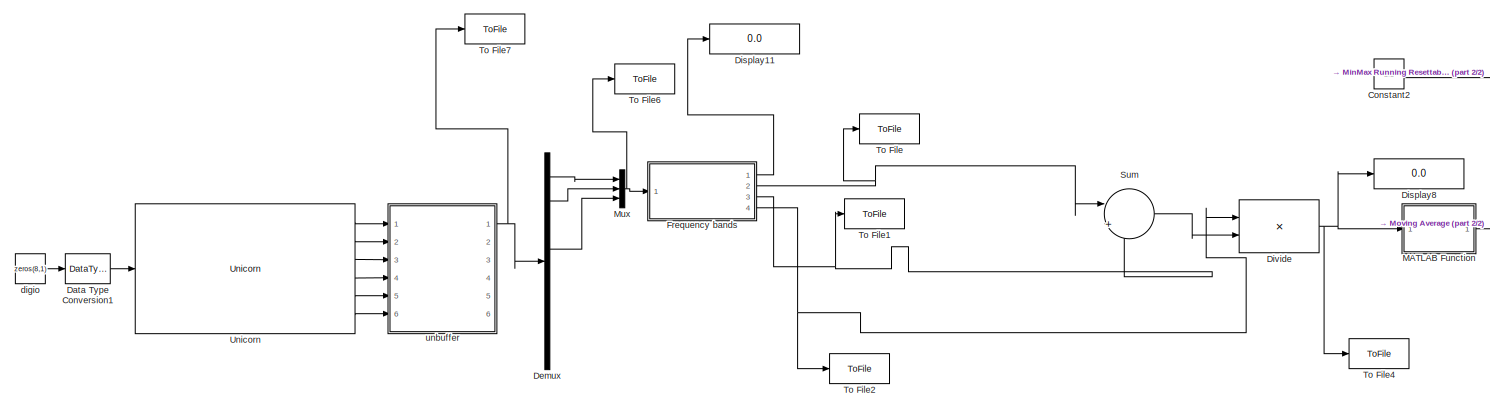
[diagram: root canvas - part 1/2, left side, full height]
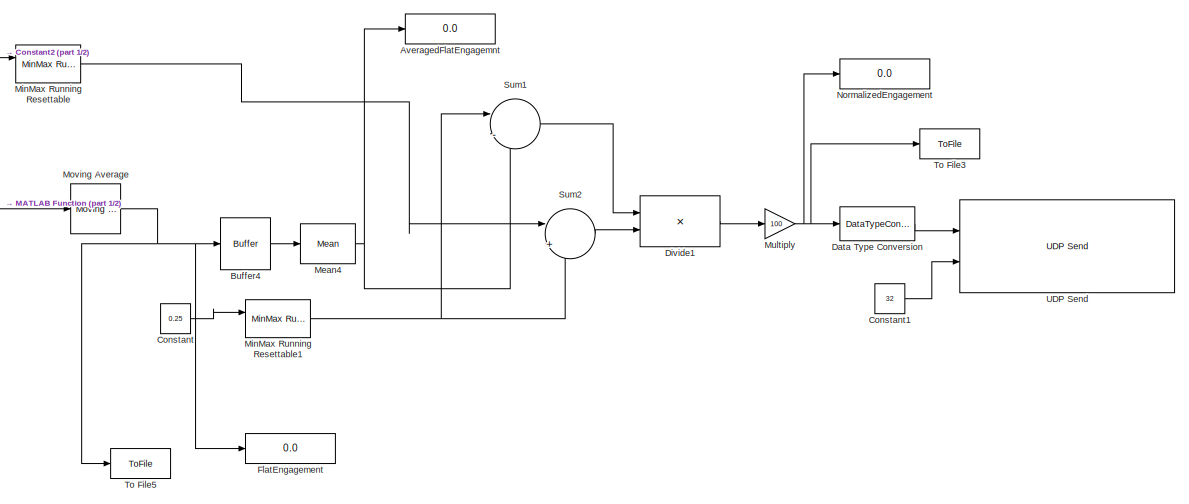
[diagram: root canvas - part 2/2, right side, full height]
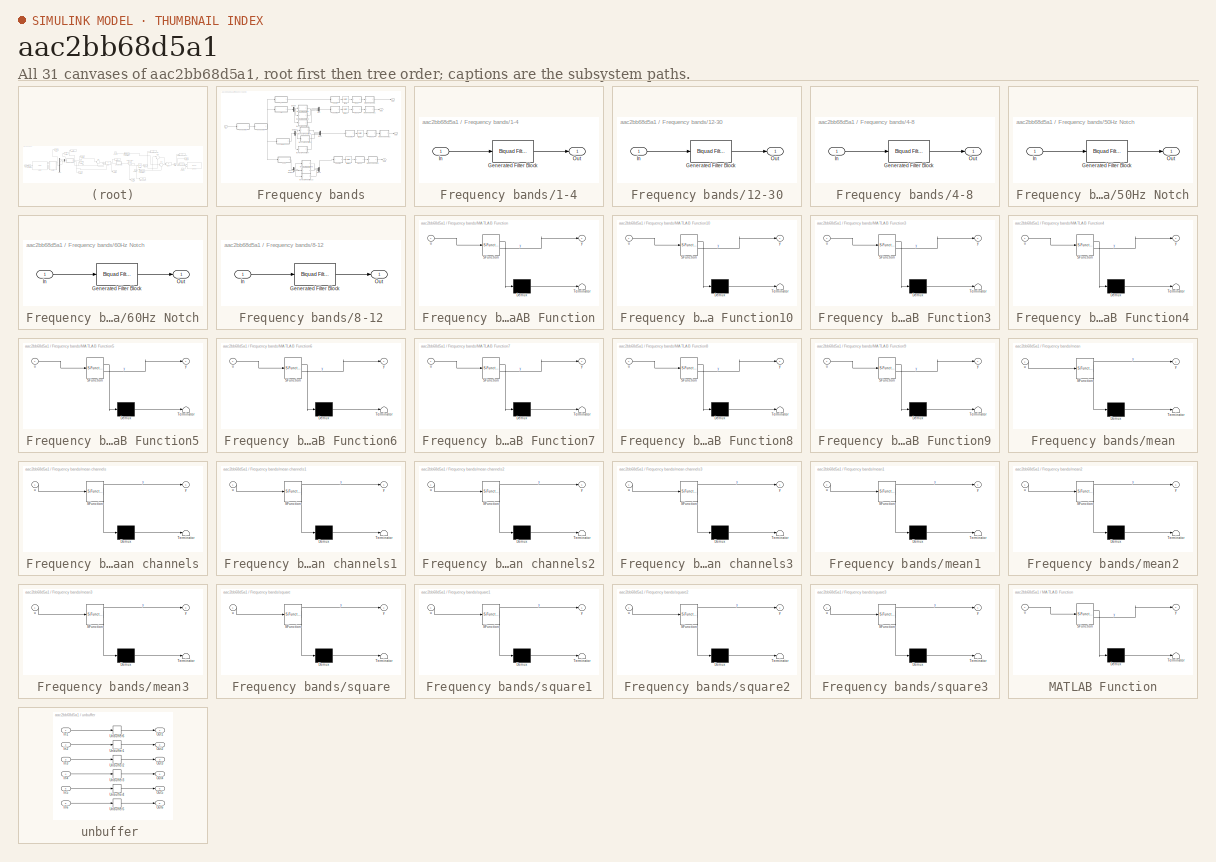
[diagram: thumbnail index - all 31 canvases of the model, root first then tree order]
MODEL slx_aac2bb68d5a1
KIND model
CONFIG AbsTol = auto
CONFIG EnableMultiTasking = off
CONFIG FixedStep = auto
CONFIG MaxStep = auto
CONFIG MinStep = auto
CONFIG RelTol = 1e-3
CONFIG SampleTimeConstraint = Unconstrained
CONFIG SolverName = VariableStepAuto
CONFIG StartTime = 0.0
CONFIG StopTime = inf
BLOCK [Display] AveragedFlatEngagemnt
  Decimation = 1
  Ports = [1]
BLOCK [Buffer] Buffer4
  N = 128
  OutputFrames = off
BLOCK [Constant] Constant
  Value = 0.25
BLOCK [Constant] Constant1
  Value = 32
BLOCK [Constant] Constant2
  Value = 2.1
BLOCK [DataTypeConversion] Data Type Conversion
  RndMeth = Floor
  SaturateOnIntegerOverflow = off
BLOCK [DataTypeConversion] Data Type Conversion1
  OutDataTypeStr = boolean
  RndMeth = Floor
  SaturateOnIntegerOverflow = off
BLOCK [Demux] Demux
  Outputs = 8
  Ports = [1, 8]
BLOCK [Display] Display11
  Decimation = 1
  Ports = [1]
BLOCK [Display] Display8
  Decimation = 1
  Ports = [1]
BLOCK [Product] Divide
  Inputs = */
  Ports = [2, 1]
BLOCK [Product] Divide1
  Inputs = */
  Ports = [2, 1]
BLOCK [Display] FlatEngagement
  Decimation = 1
  Ports = [1]
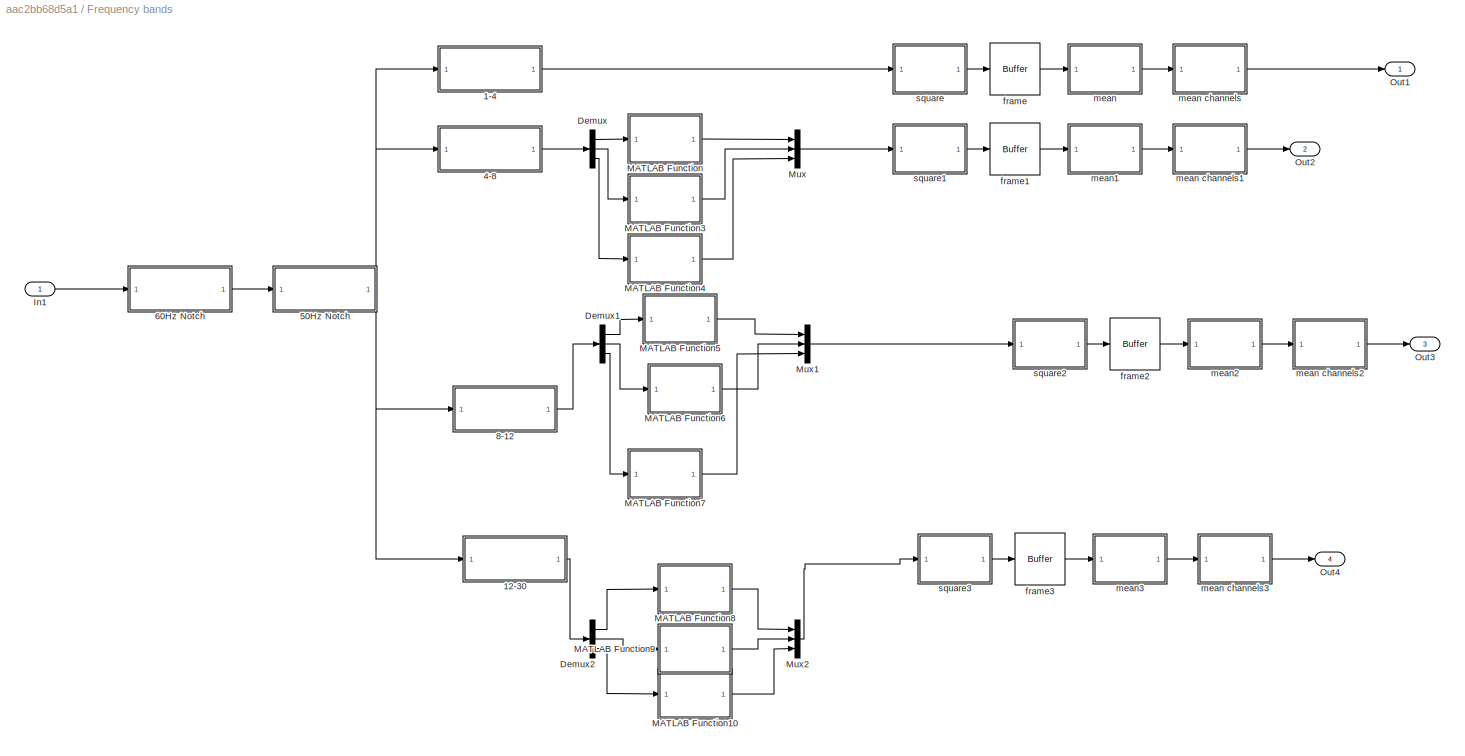
BLOCK [SubSystem] Frequency bands
  Ports = [1, 4]
  RequestExecContextInheritance = off
BLOCK [SubSystem] Frequency bands/1-4
  CopyFcn = fdesignblkfcn(gcbh, {'CopyFcn'});
  DialogController = fdesignblkfcn
  InitFcn = fdesignblkfcn(gcbh, {'InitFcn'});
  Ports = [1, 1]
  RequestExecContextInheritance = off
  UserDataPersistent = on
BLOCK [Reference] Frequency bands/1-4/Generated Filter Block  REF=dsparch4/Biquad Filter
  Ports = [1, 1]
  SourceBlock = dsparch4/Biquad Filter
  SourceProductBaseCode = DS
  SourceType = Biquad Filter
  Tag = BlockMethodSubSystem
  UserDataPersistent = on
BLOCK [Inport] Frequency bands/1-4/In
BLOCK [Outport] Frequency bands/1-4/Out
BLOCK [SubSystem] Frequency bands/12-30
  CopyFcn = fdesignblkfcn(gcbh, {'CopyFcn'});
  DialogController = fdesignblkfcn
  InitFcn = fdesignblkfcn(gcbh, {'InitFcn'});
  Ports = [1, 1]
  RequestExecContextInheritance = off
  UserDataPersistent = on
BLOCK [Reference] Frequency bands/12-30/Generated Filter Block  REF=dsparch4/Biquad Filter
  Ports = [1, 1]
  SourceBlock = dsparch4/Biquad Filter
  SourceProductBaseCode = DS
  SourceType = Biquad Filter
  Tag = BlockMethodSubSystem
  UserDataPersistent = on
BLOCK [Inport] Frequency bands/12-30/In
BLOCK [Outport] Frequency bands/12-30/Out
BLOCK [SubSystem] Frequency bands/4-8
  CopyFcn = fdesignblkfcn(gcbh, {'CopyFcn'});
  DialogController = fdesignblkfcn
  InitFcn = fdesignblkfcn(gcbh, {'InitFcn'});
  Ports = [1, 1]
  RequestExecContextInheritance = off
  UserDataPersistent = on
BLOCK [Reference] Frequency bands/4-8/Generated Filter Block  REF=dsparch4/Biquad Filter
  Ports = [1, 1]
  SourceBlock = dsparch4/Biquad Filter
  SourceProductBaseCode = DS
  SourceType = Biquad Filter
  Tag = BlockMethodSubSystem
  UserDataPersistent = on
BLOCK [Inport] Frequency bands/4-8/In
BLOCK [Outport] Frequency bands/4-8/Out
BLOCK [SubSystem] Frequency bands/50Hz Notch
  CopyFcn = fdesignblkfcn(gcbh, {'CopyFcn'});
  DialogController = fdesignblkfcn
  InitFcn = fdesignblkfcn(gcbh, {'InitFcn'});
  Ports = [1, 1]
  RequestExecContextInheritance = off
  UserDataPersistent = on
BLOCK [Reference] Frequency bands/50Hz Notch/Generated Filter Block  REF=dsparch4/Biquad Filter
  Ports = [1, 1]
  SourceBlock = dsparch4/Biquad Filter
  SourceProductBaseCode = DS
  SourceType = Biquad Filter
  Tag = BlockMethodSubSystem
  UserDataPersistent = on
BLOCK [Inport] Frequency bands/50Hz Notch/In
BLOCK [Outport] Frequency bands/50Hz Notch/Out
BLOCK [SubSystem] Frequency bands/60Hz Notch
  CopyFcn = fdesignblkfcn(gcbh, {'CopyFcn'});
  DialogController = fdesignblkfcn
  InitFcn = fdesignblkfcn(gcbh, {'InitFcn'});
  Ports = [1, 1]
  RequestExecContextInheritance = off
  UserDataPersistent = on
BLOCK [Reference] Frequency bands/60Hz Notch/Generated Filter Block  REF=dsparch4/Biquad Filter
  Ports = [1, 1]
  SourceBlock = dsparch4/Biquad Filter
  SourceProductBaseCode = DS
  SourceType = Biquad Filter
  Tag = BlockMethodSubSystem
  UserDataPersistent = on
BLOCK [Inport] Frequency bands/60Hz Notch/In
BLOCK [Outport] Frequency bands/60Hz Notch/Out
BLOCK [SubSystem] Frequency bands/8-12
  CopyFcn = fdesignblkfcn(gcbh, {'CopyFcn'});
  DialogController = fdesignblkfcn
  InitFcn = fdesignblkfcn(gcbh, {'InitFcn'});
  Ports = [1, 1]
  RequestExecContextInheritance = off
  UserDataPersistent = on
BLOCK [Reference] Frequency bands/8-12/Generated Filter Block  REF=dsparch4/Biquad Filter
  Ports = [1, 1]
  SourceBlock = dsparch4/Biquad Filter
  SourceProductBaseCode = DS
  SourceType = Biquad Filter
  Tag = BlockMethodSubSystem
  UserDataPersistent = on
BLOCK [Inport] Frequency bands/8-12/In
BLOCK [Outport] Frequency bands/8-12/Out
BLOCK [Demux] Frequency bands/Demux
  Outputs = 3
  Ports = [1, 3]
BLOCK [Demux] Frequency bands/Demux1
  Outputs = 3
  Ports = [1, 3]
BLOCK [Demux] Frequency bands/Demux2
  Outputs = 3
  Ports = [1, 3]
BLOCK [Inport] Frequency bands/In1
BLOCK [SubSystem] Frequency bands/MATLAB Function
  ErrorFcn = Stateflow.Translate.translate
  PermitHierarchicalResolution = ExplicitOnly
  Ports = [1, 1]
  RequestExecContextInheritance = off
  SFBlockType = MATLAB Function
  TreatAsAtomicUnit = on
BLOCK [Demux] Frequency bands/MATLAB Function/ Demux 
  Outputs = 1
  Ports = [1, 1]
BLOCK [S-Function] Frequency bands/MATLAB Function/ SFunction 
  EnableBusSupport = on
  FunctionName = sf_sfun
  PortCounts = [1 2]
  Ports = [1, 2]
  SFcnIsStateOwnerBlock = off
  SFunctionDeploymentMode = off
  Tag = Stateflow S-Function 14
BLOCK [Terminator] Frequency bands/MATLAB Function/ Terminator 
BLOCK [Inport] Frequency bands/MATLAB Function/u
BLOCK [Outport] Frequency bands/MATLAB Function/y
BLOCK [SubSystem] Frequency bands/MATLAB Function10
  ErrorFcn = Stateflow.Translate.translate
  PermitHierarchicalResolution = ExplicitOnly
  Ports = [1, 1]
  RequestExecContextInheritance = off
  SFBlockType = MATLAB Function
  TreatAsAtomicUnit = on
BLOCK [Demux] Frequency bands/MATLAB Function10/ Demux 
  Outputs = 1
  Ports = [1, 1]
BLOCK [S-Function] Frequency bands/MATLAB Function10/ SFunction 
  EnableBusSupport = on
  FunctionName = sf_sfun
  PortCounts = [1 2]
  Ports = [1, 2]
  SFcnIsStateOwnerBlock = off
  SFunctionDeploymentMode = off
  Tag = Stateflow S-Function 24
BLOCK [Terminator] Frequency bands/MATLAB Function10/ Terminator 
BLOCK [Inport] Frequency bands/MATLAB Function10/u
BLOCK [Outport] Frequency bands/MATLAB Function10/y
BLOCK [SubSystem] Frequency bands/MATLAB Function3
  ErrorFcn = Stateflow.Translate.translate
  PermitHierarchicalResolution = ExplicitOnly
  Ports = [1, 1]
  RequestExecContextInheritance = off
  SFBlockType = MATLAB Function
  TreatAsAtomicUnit = on
BLOCK [Demux] Frequency bands/MATLAB Function3/ Demux 
  Outputs = 1
  Ports = [1, 1]
BLOCK [S-Function] Frequency bands/MATLAB Function3/ SFunction 
  EnableBusSupport = on
  FunctionName = sf_sfun
  PortCounts = [1 2]
  Ports = [1, 2]
  SFcnIsStateOwnerBlock = off
  SFunctionDeploymentMode = off
  Tag = Stateflow S-Function 17
BLOCK [Terminator] Frequency bands/MATLAB Function3/ Terminator 
BLOCK [Inport] Frequency bands/MATLAB Function3/u
BLOCK [Outport] Frequency bands/MATLAB Function3/y
BLOCK [SubSystem] Frequency bands/MATLAB Function4
  ErrorFcn = Stateflow.Translate.translate
  PermitHierarchicalResolution = ExplicitOnly
  Ports = [1, 1]
  RequestExecContextInheritance = off
  SFBlockType = MATLAB Function
  TreatAsAtomicUnit = on
BLOCK [Demux] Frequency bands/MATLAB Function4/ Demux 
  Outputs = 1
  Ports = [1, 1]
BLOCK [S-Function] Frequency bands/MATLAB Function4/ SFunction 
  EnableBusSupport = on
  FunctionName = sf_sfun
  PortCounts = [1 2]
  Ports = [1, 2]
  SFcnIsStateOwnerBlock = off
  SFunctionDeploymentMode = off
  Tag = Stateflow S-Function 18
BLOCK [Terminator] Frequency bands/MATLAB Function4/ Terminator 
BLOCK [Inport] Frequency bands/MATLAB Function4/u
BLOCK [Outport] Frequency bands/MATLAB Function4/y
BLOCK [SubSystem] Frequency bands/MATLAB Function5
  ErrorFcn = Stateflow.Translate.translate
  PermitHierarchicalResolution = ExplicitOnly
  Ports = [1, 1]
  RequestExecContextInheritance = off
  SFBlockType = MATLAB Function
  TreatAsAtomicUnit = on
BLOCK [Demux] Frequency bands/MATLAB Function5/ Demux 
  Outputs = 1
  Ports = [1, 1]
BLOCK [S-Function] Frequency bands/MATLAB Function5/ SFunction 
  EnableBusSupport = on
  FunctionName = sf_sfun
  PortCounts = [1 2]
  Ports = [1, 2]
  SFcnIsStateOwnerBlock = off
  SFunctionDeploymentMode = off
  Tag = Stateflow S-Function 19
BLOCK [Terminator] Frequency bands/MATLAB Function5/ Terminator 
BLOCK [Inport] Frequency bands/MATLAB Function5/u
BLOCK [Outport] Frequency bands/MATLAB Function5/y
BLOCK [SubSystem] Frequency bands/MATLAB Function6
  ErrorFcn = Stateflow.Translate.translate
  PermitHierarchicalResolution = ExplicitOnly
  Ports = [1, 1]
  RequestExecContextInheritance = off
  SFBlockType = MATLAB Function
  TreatAsAtomicUnit = on
BLOCK [Demux] Frequency bands/MATLAB Function6/ Demux 
  Outputs = 1
  Ports = [1, 1]
BLOCK [S-Function] Frequency bands/MATLAB Function6/ SFunction 
  EnableBusSupport = on
  FunctionName = sf_sfun
  PortCounts = [1 2]
  Ports = [1, 2]
  SFcnIsStateOwnerBlock = off
  SFunctionDeploymentMode = off
  Tag = Stateflow S-Function 20
BLOCK [Terminator] Frequency bands/MATLAB Function6/ Terminator 
BLOCK [Inport] Frequency bands/MATLAB Function6/u
BLOCK [Outport] Frequency bands/MATLAB Function6/y
BLOCK [SubSystem] Frequency bands/MATLAB Function7
  ErrorFcn = Stateflow.Translate.translate
  PermitHierarchicalResolution = ExplicitOnly
  Ports = [1, 1]
  RequestExecContextInheritance = off
  SFBlockType = MATLAB Function
  TreatAsAtomicUnit = on
BLOCK [Demux] Frequency bands/MATLAB Function7/ Demux 
  Outputs = 1
  Ports = [1, 1]
BLOCK [S-Function] Frequency bands/MATLAB Function7/ SFunction 
  EnableBusSupport = on
  FunctionName = sf_sfun
  PortCounts = [1 2]
  Ports = [1, 2]
  SFcnIsStateOwnerBlock = off
  SFunctionDeploymentMode = off
  Tag = Stateflow S-Function 21
BLOCK [Terminator] Frequency bands/MATLAB Function7/ Terminator 
BLOCK [Inport] Frequency bands/MATLAB Function7/u
BLOCK [Outport] Frequency bands/MATLAB Function7/y
BLOCK [SubSystem] Frequency bands/MATLAB Function8
  ErrorFcn = Stateflow.Translate.translate
  PermitHierarchicalResolution = ExplicitOnly
  Ports = [1, 1]
  RequestExecContextInheritance = off
  SFBlockType = MATLAB Function
  TreatAsAtomicUnit = on
BLOCK [Demux] Frequency bands/MATLAB Function8/ Demux 
  Outputs = 1
  Ports = [1, 1]
BLOCK [S-Function] Frequency bands/MATLAB Function8/ SFunction 
  EnableBusSupport = on
  FunctionName = sf_sfun
  PortCounts = [1 2]
  Ports = [1, 2]
  SFcnIsStateOwnerBlock = off
  SFunctionDeploymentMode = off
  Tag = Stateflow S-Function 22
BLOCK [Terminator] Frequency bands/MATLAB Function8/ Terminator 
BLOCK [Inport] Frequency bands/MATLAB Function8/u
BLOCK [Outport] Frequency bands/MATLAB Function8/y
BLOCK [SubSystem] Frequency bands/MATLAB Function9
  ErrorFcn = Stateflow.Translate.translate
  PermitHierarchicalResolution = ExplicitOnly
  Ports = [1, 1]
  RequestExecContextInheritance = off
  SFBlockType = MATLAB Function
  TreatAsAtomicUnit = on
BLOCK [Demux] Frequency bands/MATLAB Function9/ Demux 
  Outputs = 1
  Ports = [1, 1]
BLOCK [S-Function] Frequency bands/MATLAB Function9/ SFunction 
  EnableBusSupport = on
  FunctionName = sf_sfun
  PortCounts = [1 2]
  Ports = [1, 2]
  SFcnIsStateOwnerBlock = off
  SFunctionDeploymentMode = off
  Tag = Stateflow S-Function 23
BLOCK [Terminator] Frequency bands/MATLAB Function9/ Terminator 
BLOCK [Inport] Frequency bands/MATLAB Function9/u
BLOCK [Outport] Frequency bands/MATLAB Function9/y
BLOCK [Mux] Frequency bands/Mux
  DisplayOption = bar
  Inputs = 3
  Ports = [3, 1]
BLOCK [Mux] Frequency bands/Mux1
  DisplayOption = bar
  Inputs = 3
  Ports = [3, 1]
BLOCK [Mux] Frequency bands/Mux2
  DisplayOption = bar
  Inputs = 3
  Ports = [3, 1]
BLOCK [Outport] Frequency bands/Out1
BLOCK [Outport] Frequency bands/Out2
  Port = 2
BLOCK [Outport] Frequency bands/Out3
  Port = 3
BLOCK [Outport] Frequency bands/Out4
  Port = 4
BLOCK [Buffer] Frequency bands/frame
  N = windowLength
  V = windowOverlap
BLOCK [Buffer] Frequency bands/frame1
  N = windowLength
  V = windowOverlap
BLOCK [Buffer] Frequency bands/frame2
  N = windowLength
  V = windowOverlap
BLOCK [Buffer] Frequency bands/frame3
  N = windowLength
  V = windowOverlap
BLOCK [SubSystem] Frequency bands/mean
  ErrorFcn = Stateflow.Translate.translate
  PermitHierarchicalResolution = ExplicitOnly
  Ports = [1, 1]
  RequestExecContextInheritance = off
  SFBlockType = MATLAB Function
  TreatAsAtomicUnit = on
BLOCK [SubSystem] Frequency bands/mean channels
  ErrorFcn = Stateflow.Translate.translate
  PermitHierarchicalResolution = ExplicitOnly
  Ports = [1, 1]
  RequestExecContextInheritance = off
  SFBlockType = MATLAB Function
  TreatAsAtomicUnit = on
BLOCK [Demux] Frequency bands/mean channels/ Demux 
  Outputs = 1
  Ports = [1, 1]
BLOCK [S-Function] Frequency bands/mean channels/ SFunction 
  EnableBusSupport = on
  FunctionName = sf_sfun
  PortCounts = [1 2]
  Ports = [1, 2]
  SFcnIsStateOwnerBlock = off
  SFunctionDeploymentMode = off
  Tag = Stateflow S-Function 3
BLOCK [Terminator] Frequency bands/mean channels/ Terminator 
BLOCK [Inport] Frequency bands/mean channels/u
BLOCK [Outport] Frequency bands/mean channels/y
BLOCK [SubSystem] Frequency bands/mean channels1
  ErrorFcn = Stateflow.Translate.translate
  PermitHierarchicalResolution = ExplicitOnly
  Ports = [1, 1]
  RequestExecContextInheritance = off
  SFBlockType = MATLAB Function
  TreatAsAtomicUnit = on
BLOCK [Demux] Frequency bands/mean channels1/ Demux 
  Outputs = 1
  Ports = [1, 1]
BLOCK [S-Function] Frequency bands/mean channels1/ SFunction 
  EnableBusSupport = on
  FunctionName = sf_sfun
  PortCounts = [1 2]
  Ports = [1, 2]
  SFcnIsStateOwnerBlock = off
  SFunctionDeploymentMode = off
  Tag = Stateflow S-Function 4
BLOCK [Terminator] Frequency bands/mean channels1/ Terminator 
BLOCK [Inport] Frequency bands/mean channels1/u
BLOCK [Outport] Frequency bands/mean channels1/y
BLOCK [SubSystem] Frequency bands/mean channels2
  ErrorFcn = Stateflow.Translate.translate
  PermitHierarchicalResolution = ExplicitOnly
  Ports = [1, 1]
  RequestExecContextInheritance = off
  SFBlockType = MATLAB Function
  TreatAsAtomicUnit = on
BLOCK [Demux] Frequency bands/mean channels2/ Demux 
  Outputs = 1
  Ports = [1, 1]
BLOCK [S-Function] Frequency bands/mean channels2/ SFunction 
  EnableBusSupport = on
  FunctionName = sf_sfun
  PortCounts = [1 2]
  Ports = [1, 2]
  SFcnIsStateOwnerBlock = off
  SFunctionDeploymentMode = off
  Tag = Stateflow S-Function 7
BLOCK [Terminator] Frequency bands/mean channels2/ Terminator 
BLOCK [Inport] Frequency bands/mean channels2/u
BLOCK [Outport] Frequency bands/mean channels2/y
BLOCK [SubSystem] Frequency bands/mean channels3
  ErrorFcn = Stateflow.Translate.translate
  PermitHierarchicalResolution = ExplicitOnly
  Ports = [1, 1]
  RequestExecContextInheritance = off
  SFBlockType = MATLAB Function
  TreatAsAtomicUnit = on
BLOCK [Demux] Frequency bands/mean channels3/ Demux 
  Outputs = 1
  Ports = [1, 1]
BLOCK [S-Function] Frequency bands/mean channels3/ SFunction 
  EnableBusSupport = on
  FunctionName = sf_sfun
  PortCounts = [1 2]
  Ports = [1, 2]
  SFcnIsStateOwnerBlock = off
  SFunctionDeploymentMode = off
  Tag = Stateflow S-Function 10
BLOCK [Terminator] Frequency bands/mean channels3/ Terminator 
BLOCK [Inport] Frequency bands/mean channels3/u
BLOCK [Outport] Frequency bands/mean channels3/y
BLOCK [Demux] Frequency bands/mean/ Demux 
  Outputs = 1
  Ports = [1, 1]
BLOCK [S-Function] Frequency bands/mean/ SFunction 
  EnableBusSupport = on
  FunctionName = sf_sfun
  PortCounts = [1 2]
  Ports = [1, 2]
  SFcnIsStateOwnerBlock = off
  SFunctionDeploymentMode = off
  Tag = Stateflow S-Function 1
BLOCK [Terminator] Frequency bands/mean/ Terminator 
BLOCK [Inport] Frequency bands/mean/u
BLOCK [Outport] Frequency bands/mean/y
BLOCK [SubSystem] Frequency bands/mean1
  ErrorFcn = Stateflow.Translate.translate
  PermitHierarchicalResolution = ExplicitOnly
  Ports = [1, 1]
  RequestExecContextInheritance = off
  SFBlockType = MATLAB Function
  TreatAsAtomicUnit = on
BLOCK [Demux] Frequency bands/mean1/ Demux 
  Outputs = 1
  Ports = [1, 1]
BLOCK [S-Function] Frequency bands/mean1/ SFunction 
  EnableBusSupport = on
  FunctionName = sf_sfun
  PortCounts = [1 2]
  Ports = [1, 2]
  SFcnIsStateOwnerBlock = off
  SFunctionDeploymentMode = off
  Tag = Stateflow S-Function 5
BLOCK [Terminator] Frequency bands/mean1/ Terminator 
BLOCK [Inport] Frequency bands/mean1/u
BLOCK [Outport] Frequency bands/mean1/y
BLOCK [SubSystem] Frequency bands/mean2
  ErrorFcn = Stateflow.Translate.translate
  PermitHierarchicalResolution = ExplicitOnly
  Ports = [1, 1]
  RequestExecContextInheritance = off
  SFBlockType = MATLAB Function
  TreatAsAtomicUnit = on
BLOCK [Demux] Frequency bands/mean2/ Demux 
  Outputs = 1
  Ports = [1, 1]
BLOCK [S-Function] Frequency bands/mean2/ SFunction 
  EnableBusSupport = on
  FunctionName = sf_sfun
  PortCounts = [1 2]
  Ports = [1, 2]
  SFcnIsStateOwnerBlock = off
  SFunctionDeploymentMode = off
  Tag = Stateflow S-Function 8
BLOCK [Terminator] Frequency bands/mean2/ Terminator 
BLOCK [Inport] Frequency bands/mean2/u
BLOCK [Outport] Frequency bands/mean2/y
BLOCK [SubSystem] Frequency bands/mean3
  ErrorFcn = Stateflow.Translate.translate
  PermitHierarchicalResolution = ExplicitOnly
  Ports = [1, 1]
  RequestExecContextInheritance = off
  SFBlockType = MATLAB Function
  TreatAsAtomicUnit = on
BLOCK [Demux] Frequency bands/mean3/ Demux 
  Outputs = 1
  Ports = [1, 1]
BLOCK [S-Function] Frequency bands/mean3/ SFunction 
  EnableBusSupport = on
  FunctionName = sf_sfun
  PortCounts = [1 2]
  Ports = [1, 2]
  SFcnIsStateOwnerBlock = off
  SFunctionDeploymentMode = off
  Tag = Stateflow S-Function 11
BLOCK [Terminator] Frequency bands/mean3/ Terminator 
BLOCK [Inport] Frequency bands/mean3/u
BLOCK [Outport] Frequency bands/mean3/y
BLOCK [SubSystem] Frequency bands/square
  ErrorFcn = Stateflow.Translate.translate
  PermitHierarchicalResolution = ExplicitOnly
  Ports = [1, 1]
  RequestExecContextInheritance = off
  SFBlockType = MATLAB Function
  TreatAsAtomicUnit = on
BLOCK [Demux] Frequency bands/square/ Demux 
  Outputs = 1
  Ports = [1, 1]
BLOCK [S-Function] Frequency bands/square/ SFunction 
  EnableBusSupport = on
  FunctionName = sf_sfun
  PortCounts = [1 2]
  Ports = [1, 2]
  SFcnIsStateOwnerBlock = off
  SFunctionDeploymentMode = off
  Tag = Stateflow S-Function 2
BLOCK [Terminator] Frequency bands/square/ Terminator 
BLOCK [Inport] Frequency bands/square/u
BLOCK [Outport] Frequency bands/square/y
BLOCK [SubSystem] Frequency bands/square1
  ErrorFcn = Stateflow.Translate.translate
  PermitHierarchicalResolution = ExplicitOnly
  Ports = [1, 1]
  RequestExecContextInheritance = off
  SFBlockType = MATLAB Function
  TreatAsAtomicUnit = on
BLOCK [Demux] Frequency bands/square1/ Demux 
  Outputs = 1
  Ports = [1, 1]
BLOCK [S-Function] Frequency bands/square1/ SFunction 
  EnableBusSupport = on
  FunctionName = sf_sfun
  PortCounts = [1 2]
  Ports = [1, 2]
  SFcnIsStateOwnerBlock = off
  SFunctionDeploymentMode = off
  Tag = Stateflow S-Function 6
BLOCK [Terminator] Frequency bands/square1/ Terminator 
BLOCK [Inport] Frequency bands/square1/u
BLOCK [Outport] Frequency bands/square1/y
BLOCK [SubSystem] Frequency bands/square2
  ErrorFcn = Stateflow.Translate.translate
  PermitHierarchicalResolution = ExplicitOnly
  Ports = [1, 1]
  RequestExecContextInheritance = off
  SFBlockType = MATLAB Function
  TreatAsAtomicUnit = on
BLOCK [Demux] Frequency bands/square2/ Demux 
  Outputs = 1
  Ports = [1, 1]
BLOCK [S-Function] Frequency bands/square2/ SFunction 
  EnableBusSupport = on
  FunctionName = sf_sfun
  PortCounts = [1 2]
  Ports = [1, 2]
  SFcnIsStateOwnerBlock = off
  SFunctionDeploymentMode = off
  Tag = Stateflow S-Function 9
BLOCK [Terminator] Frequency bands/square2/ Terminator 
BLOCK [Inport] Frequency bands/square2/u
BLOCK [Outport] Frequency bands/square2/y
BLOCK [SubSystem] Frequency bands/square3
  ErrorFcn = Stateflow.Translate.translate
  PermitHierarchicalResolution = ExplicitOnly
  Ports = [1, 1]
  RequestExecContextInheritance = off
  SFBlockType = MATLAB Function
  TreatAsAtomicUnit = on
BLOCK [Demux] Frequency bands/square3/ Demux 
  Outputs = 1
  Ports = [1, 1]
BLOCK [S-Function] Frequency bands/square3/ SFunction 
  EnableBusSupport = on
  FunctionName = sf_sfun
  PortCounts = [1 2]
  Ports = [1, 2]
  SFcnIsStateOwnerBlock = off
  SFunctionDeploymentMode = off
  Tag = Stateflow S-Function 12
BLOCK [Terminator] Frequency bands/square3/ Terminator 
BLOCK [Inport] Frequency bands/square3/u
BLOCK [Outport] Frequency bands/square3/y
BLOCK [SubSystem] MATLAB Function
  ErrorFcn = Stateflow.Translate.translate
  PermitHierarchicalResolution = ExplicitOnly
  Ports = [1, 1]
  RequestExecContextInheritance = off
  SFBlockType = MATLAB Function
  TreatAsAtomicUnit = on
BLOCK [Demux] MATLAB Function/ Demux 
  Outputs = 1
  Ports = [1, 1]
BLOCK [S-Function] MATLAB Function/ SFunction 
  EnableBusSupport = on
  FunctionName = sf_sfun
  PortCounts = [1 2]
  Ports = [1, 2]
  SFcnIsStateOwnerBlock = off
  SFunctionDeploymentMode = off
  Tag = Stateflow S-Function 13
BLOCK [Terminator] MATLAB Function/ Terminator 
BLOCK [Inport] MATLAB Function/u
BLOCK [Outport] MATLAB Function/y
BLOCK [Reference] Mean4  REF=dspstat3/Mean
  Ports = [1, 1]
  SourceBlock = dspstat3/Mean
  SourceProductBaseCode = DS
  SourceType = Mean
  UserDataPersistent = on
BLOCK [Reference] MinMax Running Resettable  REF=simulink/Math
Operations/MinMax
Running
Resettable
  Ports = [2, 1]
  SourceBlock = simulink/Math\nOperations/MinMax\nRunning\nResettable
  SourceProductBaseCode = SL
  SourceType = MinMax Running Resettable
BLOCK [Reference] MinMax Running Resettable1  REF=simulink/Math
Operations/MinMax
Running
Resettable
  Ports = [2, 1]
  SourceBlock = simulink/Math\nOperations/MinMax\nRunning\nResettable
  SourceProductBaseCode = SL
  SourceType = MinMax Running Resettable
BLOCK [Reference] Moving Average  REF=dspstat3/Moving
Average
  Ports = [1, 1]
  SourceBlock = dspstat3/Moving\nAverage
  SourceProductBaseCode = DS
  SourceType = dsp.simulink.MovingAverage
BLOCK [Gain] Multiply
  Gain = 100
BLOCK [Mux] Mux
  DisplayOption = bar
  Inputs = 3
  Ports = [3, 1]
BLOCK [Display] NormalizedEngagement
  Decimation = 1
  Ports = [1]
BLOCK [Sum] Sum
  Inputs = |++
  Ports = [2, 1]
BLOCK [Sum] Sum1
  Inputs = |-+
  Ports = [2, 1]
BLOCK [Sum] Sum2
  Inputs = |+-
  Ports = [2, 1]
BLOCK [ToFile] To File
  Filename = theta.mat
  Ports = [1]
  SaveFormat = Timeseries
BLOCK [ToFile] To File1
  Filename = alpha.mat
  Ports = [1]
  SaveFormat = Timeseries
BLOCK [ToFile] To File2
  Filename = beta.mat
  Ports = [1]
  SaveFormat = Timeseries
BLOCK [ToFile] To File3
  Filename = normalizedengagement.mat
  Ports = [1]
  SaveFormat = Timeseries
BLOCK [ToFile] To File4
  Filename = enorm.mat
  Ports = [1]
  SaveFormat = Timeseries
BLOCK [ToFile] To File5
  Filename = flatengagement.mat
  Ports = [1]
  SaveFormat = Timeseries
BLOCK [ToFile] To File6
  Filename = frontalelectrodes.mat
  Ports = [1]
  SaveFormat = Timeseries
BLOCK [ToFile] To File7
  Filename = raweeg.mat
  Ports = [1]
  SaveFormat = Timeseries
BLOCK [Reference] UDP Send  REF=slrealtimeiplib/UDP Send
  Ports = [2]
  SourceBlock = slrealtimeiplib/UDP Send
  SourceProductBaseCode = XP
  SourceType = slrealtimeudpsend
BLOCK [Reference] Unicorn  REF=UnicornLib/Unicorn
  Ports = [1, 6]
  SourceBlock = UnicornLib/Unicorn
  SourceProductName = Unicorn
  SourceType = Unicorn
BLOCK [Constant] digio
  SampleTime = -1
  Value = zeros(8,1)
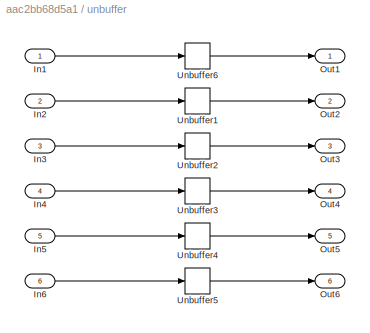
BLOCK [SubSystem] unbuffer 
  Ports = [6, 6]
  RequestExecContextInheritance = off
BLOCK [Inport] unbuffer /In1
BLOCK [Inport] unbuffer /In2
  Port = 2
BLOCK [Inport] unbuffer /In3
  Port = 3
BLOCK [Inport] unbuffer /In4
  Port = 4
BLOCK [Inport] unbuffer /In5
  Port = 5
BLOCK [Inport] unbuffer /In6
  Port = 6
BLOCK [Outport] unbuffer /Out1
BLOCK [Outport] unbuffer /Out2
  Port = 2
BLOCK [Outport] unbuffer /Out3
  Port = 3
BLOCK [Outport] unbuffer /Out4
  Port = 4
BLOCK [Outport] unbuffer /Out5
  Port = 5
BLOCK [Outport] unbuffer /Out6
  Port = 6
BLOCK [Unbuffer] unbuffer /Unbuffer1
  Ports = [1, 1]
BLOCK [Unbuffer] unbuffer /Unbuffer2
  Ports = [1, 1]
BLOCK [Unbuffer] unbuffer /Unbuffer3
  Ports = [1, 1]
BLOCK [Unbuffer] unbuffer /Unbuffer4
  Ports = [1, 1]
BLOCK [Unbuffer] unbuffer /Unbuffer5
  Ports = [1, 1]
BLOCK [Unbuffer] unbuffer /Unbuffer6
  Ports = [1, 1]
LINE Buffer4:1 -> Mean4:1
LINE Constant1:1 -> UDP Send:2
LINE Constant2:1 -> MinMax Running Resettable:1
LINE Constant:1 -> MinMax Running Resettable1:1
LINE Data Type Conversion1:1 -> Unicorn:1
LINE Data Type Conversion:1 -> UDP Send:1
LINE Demux:1 -> Mux:1
LINE Demux:2 -> Mux:2
LINE Demux:4 -> Mux:3
LINE Divide1:1 -> Multiply:1
NET Divide:1 -> Display8:1, MATLAB Function:1, To File4:1
LINE Frequency bands/1-4:1 -> Frequency bands/square:1
LINE Frequency bands/12-30:1 -> Frequency bands/Demux2:1
LINE Frequency bands/4-8:1 -> Frequency bands/Demux:1
NET Frequency bands/50Hz Notch:1 -> Frequency bands/1-4:1, Frequency bands/12-30:1, Frequency bands/4-8:1, Frequency bands/8-12:1
LINE Frequency bands/60Hz Notch:1 -> Frequency bands/50Hz Notch:1
LINE Frequency bands/8-12:1 -> Frequency bands/Demux1:1
LINE Frequency bands/Demux1:1 -> Frequency bands/MATLAB Function5:1
LINE Frequency bands/Demux1:2 -> Frequency bands/MATLAB Function6:1
LINE Frequency bands/Demux1:3 -> Frequency bands/MATLAB Function7:1
LINE Frequency bands/Demux2:1 -> Frequency bands/MATLAB Function8:1
LINE Frequency bands/Demux2:2 -> Frequency bands/MATLAB Function9:1
LINE Frequency bands/Demux2:3 -> Frequency bands/MATLAB Function10:1
LINE Frequency bands/Demux:1 -> Frequency bands/MATLAB Function:1
LINE Frequency bands/Demux:2 -> Frequency bands/MATLAB Function3:1
LINE Frequency bands/Demux:3 -> Frequency bands/MATLAB Function4:1
LINE Frequency bands/In1:1 -> Frequency bands/60Hz Notch:1
LINE Frequency bands/MATLAB Function10:1 -> Frequency bands/Mux2:3
LINE Frequency bands/MATLAB Function3:1 -> Frequency bands/Mux:2
LINE Frequency bands/MATLAB Function4:1 -> Frequency bands/Mux:3
LINE Frequency bands/MATLAB Function5:1 -> Frequency bands/Mux1:1
LINE Frequency bands/MATLAB Function6:1 -> Frequency bands/Mux1:2
LINE Frequency bands/MATLAB Function7:1 -> Frequency bands/Mux1:3
LINE Frequency bands/MATLAB Function8:1 -> Frequency bands/Mux2:1
LINE Frequency bands/MATLAB Function9:1 -> Frequency bands/Mux2:2
LINE Frequency bands/MATLAB Function:1 -> Frequency bands/Mux:1
LINE Frequency bands/Mux1:1 -> Frequency bands/square2:1
LINE Frequency bands/Mux2:1 -> Frequency bands/square3:1
LINE Frequency bands/Mux:1 -> Frequency bands/square1:1
LINE Frequency bands/frame1:1 -> Frequency bands/mean1:1
LINE Frequency bands/frame2:1 -> Frequency bands/mean2:1
LINE Frequency bands/frame3:1 -> Frequency bands/mean3:1
LINE Frequency bands/frame:1 -> Frequency bands/mean:1
LINE Frequency bands/mean channels1:1 -> Frequency bands/Out2:1
LINE Frequency bands/mean channels2:1 -> Frequency bands/Out3:1
LINE Frequency bands/mean channels3:1 -> Frequency bands/Out4:1
LINE Frequency bands/mean channels:1 -> Frequency bands/Out1:1
LINE Frequency bands/mean1:1 -> Frequency bands/mean channels1:1
LINE Frequency bands/mean2:1 -> Frequency bands/mean channels2:1
LINE Frequency bands/mean3:1 -> Frequency bands/mean channels3:1
LINE Frequency bands/mean:1 -> Frequency bands/mean channels:1
LINE Frequency bands/square1:1 -> Frequency bands/frame1:1
LINE Frequency bands/square2:1 -> Frequency bands/frame2:1
LINE Frequency bands/square3:1 -> Frequency bands/frame3:1
LINE Frequency bands/square:1 -> Frequency bands/frame:1
LINE Frequency bands:1 -> Display11:1
NET Frequency bands:2 -> Sum:1, To File:1
NET Frequency bands:3 -> Sum:2, To File1:1
NET Frequency bands:4 -> Divide:1, To File2:1
LINE MATLAB Function:1 -> Moving Average:1
NET Mean4:1 -> AveragedFlatEngagemnt:1, Sum1:2
NET MinMax Running Resettable1:1 -> Sum1:1, Sum2:2
LINE MinMax Running Resettable:1 -> Sum2:1
NET Moving Average:1 -> Buffer4:1, FlatEngagement:1, To File5:1
NET Multiply:1 -> Data Type Conversion:1, NormalizedEngagement:1, To File3:1
NET Mux:1 -> Frequency bands:1, To File6:1
LINE Sum1:1 -> Divide1:1
LINE Sum2:1 -> Divide1:2
LINE Sum:1 -> Divide:2
LINE Unicorn:1 -> unbuffer :1
LINE Unicorn:2 -> unbuffer :2
LINE Unicorn:3 -> unbuffer :3
LINE Unicorn:4 -> unbuffer :4
LINE Unicorn:5 -> unbuffer :5
LINE Unicorn:6 -> unbuffer :6
LINE digio:1 -> Data Type Conversion1:1
LINE unbuffer /In1:1 -> unbuffer /Unbuffer6:1
LINE unbuffer /In2:1 -> unbuffer /Unbuffer1:1
LINE unbuffer /In3:1 -> unbuffer /Unbuffer2:1
LINE unbuffer /In4:1 -> unbuffer /Unbuffer3:1
LINE unbuffer /In5:1 -> unbuffer /Unbuffer4:1
LINE unbuffer /In6:1 -> unbuffer /Unbuffer5:1
LINE unbuffer /Unbuffer1:1 -> unbuffer /Out2:1
LINE unbuffer /Unbuffer2:1 -> unbuffer /Out3:1
LINE unbuffer /Unbuffer3:1 -> unbuffer /Out4:1
LINE unbuffer /Unbuffer4:1 -> unbuffer /Out5:1
LINE unbuffer /Unbuffer5:1 -> unbuffer /Out6:1
LINE unbuffer /Unbuffer6:1 -> unbuffer /Out1:1
NET unbuffer :1 -> Demux:1, To File7:1
note: NET lines group one-source signal fan-out (src -> all destinations, sorted); 1:1 wires keep LINE
CHART Frequency bands/MATLAB Function3 states=1 transitions=1
  STATE_LABEL 'eML_blk_kernel()'
  STATE_LABEL 'SCRIPT:\nfunction y = fcn(u)\n%if u < 20\n%    u = 20;\nif u > 100\n    u = 100;\nend\n\ny = u;\n'
CHART Frequency bands/MATLAB Function4 states=1 transitions=1
  STATE_LABEL 'eML_blk_kernel()'
  STATE_LABEL 'SCRIPT:\nfunction y = fcn(u)\n%if u < 20\n%    u = 20;\nif u > 100\n    u = 100;\nend\n\ny = u;\n'
CHART Frequency bands/MATLAB Function5 states=1 transitions=1
  STATE_LABEL 'eML_blk_kernel()'
  STATE_LABEL 'SCRIPT:\nfunction y = fcn(u)\n%if u < 20\n%    u = 20;\nif u >60\n    u = 60;\nend\ny = u;\n'
CHART Frequency bands/MATLAB Function6 states=1 transitions=1
  STATE_LABEL 'eML_blk_kernel()'
  STATE_LABEL 'SCRIPT:\nfunction y = fcn(u)\n%if u < 20\n%    u = 20;\nif u >60\n    u = 60;\nend\ny = u;\n'
CHART Frequency bands/MATLAB Function7 states=1 transitions=1
  STATE_LABEL 'eML_blk_kernel()'
  STATE_LABEL 'SCRIPT:\nfunction y = fcn(u)\n%if u < 20\n%    u = 20;\nif u >60\n    u = 60;\nend\ny = u;\n'
CHART Frequency bands/square states=1 transitions=1
  STATE_LABEL 'eML_blk_kernel()'
  STATE_LABEL 'SCRIPT:\nfunction y = fcn(u)\nfor i=1:length(u)\n    u(i)=u(i)*u(i);\nend\ny = u;'
CHART Frequency bands/MATLAB Function8 states=1 transitions=1
  STATE_LABEL 'eML_blk_kernel()'
  STATE_LABEL 'SCRIPT:\nfunction y = fcn(u)\n%if u < 2\n%    u = 2;\nif u > 20\n    u = 20;\nend\ny = u;\n'
CHART Frequency bands/MATLAB Function9 states=1 transitions=1
  STATE_LABEL 'eML_blk_kernel()'
  STATE_LABEL 'SCRIPT:\nfunction y = fcn(u)\n%if u < 2\n%    u = 2;\nif u > 20\n    u = 20;\nend\ny = u;\n'
CHART Frequency bands/MATLAB Function10 states=1 transitions=1
  STATE_LABEL 'eML_blk_kernel()'
  STATE_LABEL 'SCRIPT:\nfunction y = fcn(u)\n%if u < 2\n%    u = 2;\nif u > 20\n    u = 20;\nend\ny = u;\n'
CHART Frequency bands/mean channels states=1 transitions=1
  STATE_LABEL 'eML_blk_kernel()'
  STATE_LABEL 'SCRIPT:\nfunction y = fcn(u)\ny=mean(u);'
CHART Frequency bands/mean channels1 states=1 transitions=1
  STATE_LABEL 'eML_blk_kernel()'
  STATE_LABEL 'SCRIPT:\nfunction y = fcn(u)\ny=mean(u);'
CHART Frequency bands/mean1 states=1 transitions=1
  STATE_LABEL 'eML_blk_kernel()'
  STATE_LABEL 'SCRIPT:\nfunction y = fcn(u)\n[~,c]=size(u);\nx = zeros(c,1);\nfor i=1:c\n    x(i)=mean(u(:,i));\nend\ny=x;'
CHART Frequency bands/square1 states=1 transitions=1
  STATE_LABEL 'eML_blk_kernel()'
  STATE_LABEL 'SCRIPT:\nfunction y = fcn(u)\nfor i=1:length(u)\n    u(i)=u(i)*u(i);\nend\ny = u;'
CHART Frequency bands/mean channels2 states=1 transitions=1
  STATE_LABEL 'eML_blk_kernel()'
  STATE_LABEL 'SCRIPT:\nfunction y = fcn(u)\ny=mean(u);'
CHART Frequency bands/mean2 states=1 transitions=1
  STATE_LABEL 'eML_blk_kernel()'
  STATE_LABEL 'SCRIPT:\nfunction y = fcn(u)\n[~,c]=size(u);\nx = zeros(c,1);\nfor i=1:c\n    x(i)=mean(u(:,i));\nend\ny=x;'
CHART Frequency bands/square2 states=1 transitions=1
  STATE_LABEL 'eML_blk_kernel()'
  STATE_LABEL 'SCRIPT:\nfunction y = fcn(u)\nfor i=1:length(u)\n    u(i)=u(i)*u(i);\nend\ny = u;'
CHART Frequency bands/mean states=1 transitions=1
  STATE_LABEL 'eML_blk_kernel()'
  STATE_LABEL 'SCRIPT:\nfunction y = fcn(u)\n[~,c]=size(u);\nx = zeros(c,1);\nfor i=1:c\n    x(i)=mean(u(:,i));\nend\ny=x;'
CHART Frequency bands/mean channels3 states=1 transitions=1
  STATE_LABEL 'eML_blk_kernel()'
  STATE_LABEL 'SCRIPT:\nfunction y = fcn(u)\ny=mean(u);'
CHART Frequency bands/mean3 states=1 transitions=1
  STATE_LABEL 'eML_blk_kernel()'
  STATE_LABEL 'SCRIPT:\nfunction y = fcn(u)\n[~,c]=size(u);\nx = zeros(c,1);\nfor i=1:c\n    x(i)=mean(u(:,i));\nend\ny=x;'
CHART Frequency bands/square3 states=1 transitions=1
  STATE_LABEL 'eML_blk_kernel()'
  STATE_LABEL 'SCRIPT:\nfunction y = fcn(u)\nfor i=1:length(u)\n    u(i)=u(i)*u(i);\nend\ny = u;'
CHART MATLAB Function states=1 transitions=1
  STATE_LABEL 'eML_blk_kernel()'
  STATE_LABEL 'SCRIPT:\nfunction y = fcn(u)\nif (isnan(u))\n    u = 1;\nend\ny = u;\n'
CHART Frequency bands/MATLAB Function states=1 transitions=1
  STATE_LABEL 'eML_blk_kernel()'
  STATE_LABEL 'SCRIPT:\nfunction y = fcn(u)\n%if u < 20\n %   u = 20;\nif u > 100\n    u = 100;\nend\n\ny = u;\n'
CHART  states=0 transitions=0
CHART  states=0 transitions=0
CHART  states=0 transitions=0
CHART  states=0 transitions=0
CHART  states=0 transitions=0
CHART  states=0 transitions=0
CHART  states=0 transitions=0
CHART  states=0 transitions=0
CHART  states=0 transitions=0
CHART  states=0 transitions=0
CHART  states=0 transitions=0
CHART  states=0 transitions=0
CHART  states=0 transitions=0
CHART  states=0 transitions=0
CHART  states=0 transitions=0
CHART  states=0 transitions=0
CHART  states=0 transitions=0
CHART  states=0 transitions=0
CHART  states=0 transitions=0
CHART  states=0 transitions=0
CHART  states=0 transitions=0
CHART  states=0 transitions=0
